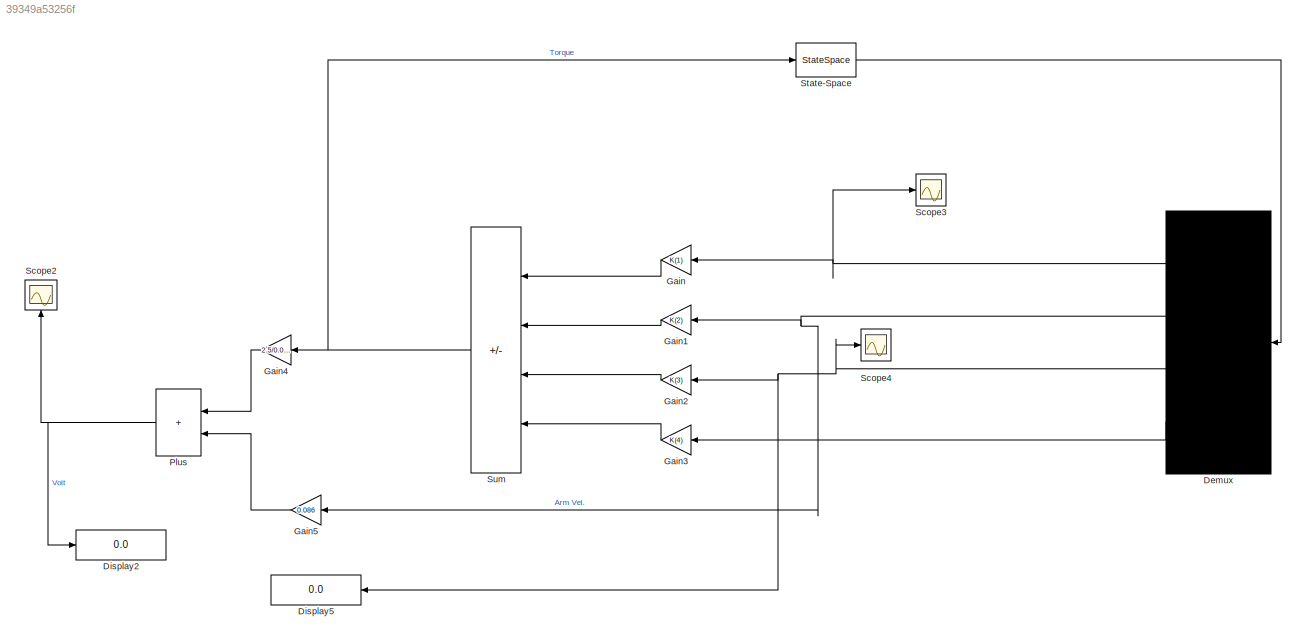
MODEL slx_39349a53256f
KIND model
CONFIG AbsTol = auto
CONFIG EnableMultiTasking = off
CONFIG FixedStep = auto
CONFIG MaxStep = auto
CONFIG MinStep = auto
CONFIG RelTol = 1e-3
CONFIG SampleTimeConstraint = Unconstrained
CONFIG Solver = VariableStepAuto
CONFIG SolverName = VariableStepAuto
CONFIG StartTime = 0.0
CONFIG StopTime = 10.0
BLOCK [Demux] Demux
  NameLocation = top
  Ports = [1, 4]
BLOCK [Display] Display2
  Decimation = 1
  Ports = [1]
BLOCK [Display] Display5
  Decimation = 1
  NameLocation = top
  Ports = [1]
BLOCK [Gain] Gain
  Gain = K(1)
  NameLocation = top
BLOCK [Gain] Gain1
  Gain = K(2)
  NameLocation = top
BLOCK [Gain] Gain2
  Gain = K(3)
  NameLocation = top
BLOCK [Gain] Gain3
  Gain = K(4)
  NameLocation = top
BLOCK [Gain] Gain4
  Gain = 2.5/0.086
  NameLocation = top
BLOCK [Gain] Gain5
  Gain = 0.086
  NameLocation = top
BLOCK [Sum] Plus
  IconShape = rectangular
  NameLocation = top
  Ports = [2, 1]
BLOCK [Scope] Scope2
  Floating = off
  NameLocation = right
  NumInputPorts = 1
  Ports = [1]
  ScopeSpecificationString = Simulink.scopes.TimeScopeBlockCfg('CurrentConfiguration', extmgr.ConfigurationSet(extmgr.Configuration('Core','General UI',true),extmgr.Configuration('Core','Source UI',true),extmgr.Configuration('Sources','WiredSimulink',true,'DataLoggingVariableName','ScopeData1'),extmgr.Configuration('Visuals','Time Domain',true,'SerializedDisplays',{struct('MinYLimReal','-2.08153','MaxYLimReal','16.36464','YLa...<+1737ch>
BLOCK [Scope] Scope3
  Floating = off
  NumInputPorts = 1
  Ports = [1]
  ScopeSpecificationString = Simulink.scopes.TimeScopeBlockCfg('CurrentConfiguration', extmgr.ConfigurationSet(extmgr.Configuration('Core','General UI',true),extmgr.Configuration('Core','Source UI',true),extmgr.Configuration('Sources','WiredSimulink',true,'DataLoggingVariableName','ScopeData2'),extmgr.Configuration('Visuals','Time Domain',true,'SerializedDisplays',{struct('MinYLimReal','-0.04046','MaxYLimReal','0.36417','YLab...<+1439ch>
BLOCK [Scope] Scope4
  Floating = off
  NumInputPorts = 1
  Ports = [1]
  ScopeSpecificationString = Simulink.scopes.TimeScopeBlockCfg('CurrentConfiguration', extmgr.ConfigurationSet(extmgr.Configuration('Core','General UI',true),extmgr.Configuration('Core','Source UI',true),extmgr.Configuration('Sources','WiredSimulink',true),extmgr.Configuration('Visuals','Time Domain',true,'SerializedDisplays',{struct('MinYLimReal','-0.07042','MaxYLimReal','0.39567','YLabelReal','','MinYLimMag','0.00000','MaxY...<+1425ch>
BLOCK [StateSpace] State-Space
  A = A
  B = B
  C = C
  D = D
  InitialCondition = [0 0 20*pi/180 0]
  Ports = [1, 1]
BLOCK [Sum] Sum
  IconShape = rectangular
  Inputs = ----
  NameLocation = top
  Ports = [4, 1]
NET Demux:1 -> Gain:1, Scope3:1
NET Demux:2 -> Gain1:1, Gain5:1
NET Demux:3 -> Display5:1, Gain2:1, Scope4:1
LINE Demux:4 -> Gain3:1
LINE Gain1:1 -> Sum:2
LINE Gain2:1 -> Sum:3
LINE Gain3:1 -> Sum:4
LINE Gain4:1 -> Plus:1
LINE Gain5:1 -> Plus:2
LINE Gain:1 -> Sum:1
NET Plus:1 -> Display2:1, Scope2:1
LINE State-Space:1 -> Demux:1
NET Sum:1 -> Gain4:1, State-Space:1
note: NET lines group one-source signal fan-out (src -> all destinations, sorted); 1:1 wires keep LINE
